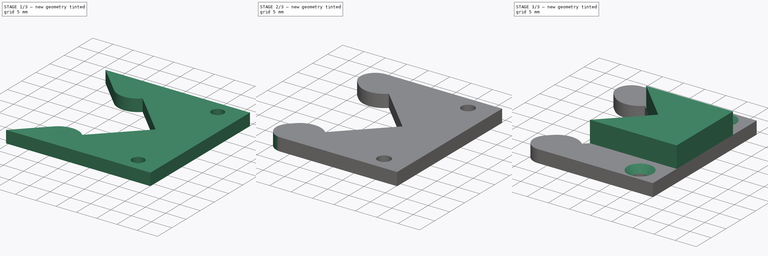
[diagram: build sequence overview — one tinted view per stage of 3, left to right]
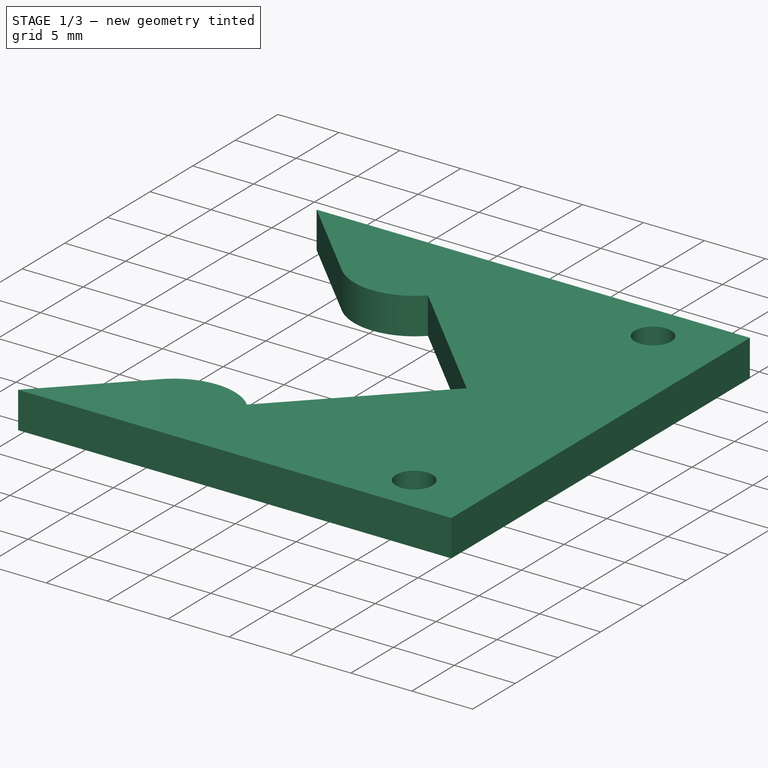
[diagram: stage 1 of 3 — iso view after this stage's code; geometry added in this stage tinted green]
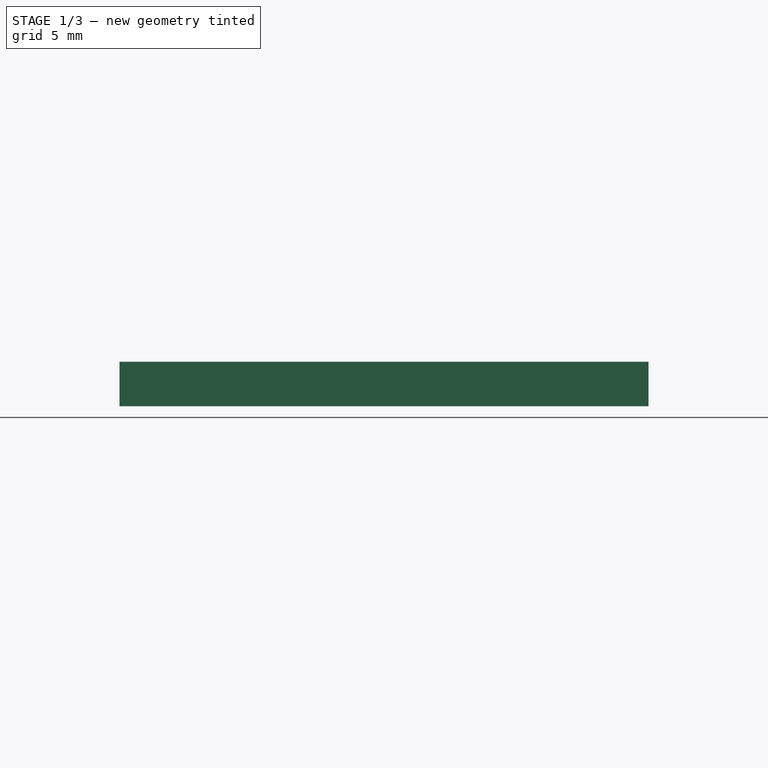
[diagram: stage 1 of 3 — front view after this stage's code; geometry added in this stage tinted green]
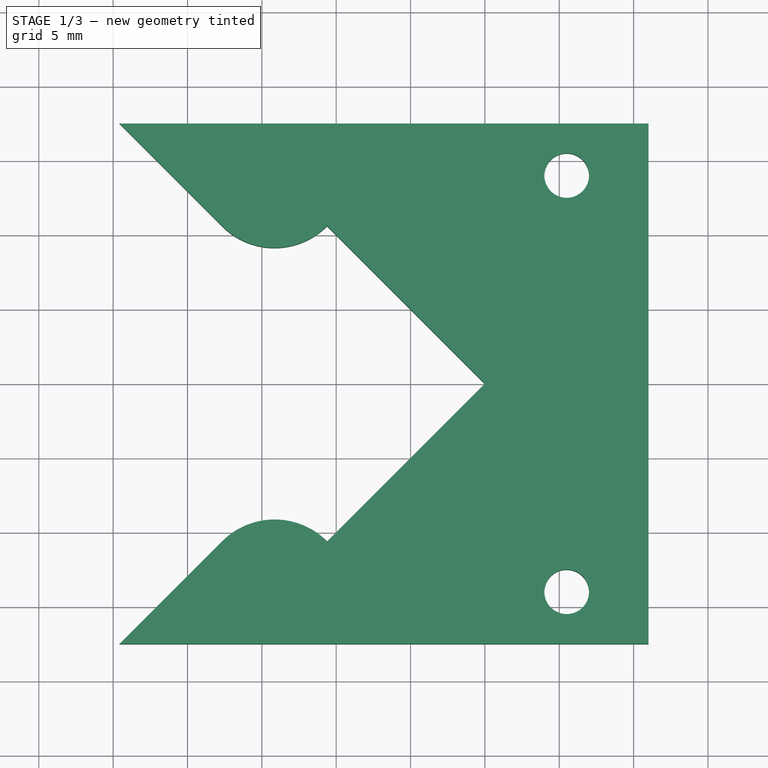
[diagram: stage 1 of 3 — top view after this stage's code; geometry added in this stage tinted green]
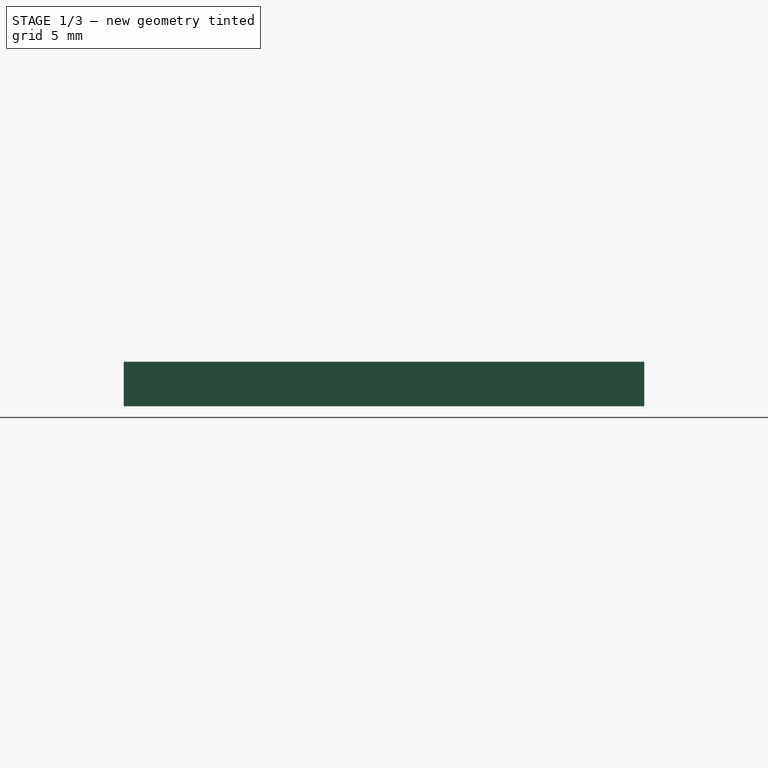
[diagram: stage 1 of 3 — right view after this stage's code; geometry added in this stage tinted green]
FCSTD DOCUMENT  (FreeCAD 0.18R16146 (Git))
Label: enstop_clamp_v4
License: All rights reserved
LicenseURL: http://en.wikipedia.org/wiki/All_rights_reserved
objects: Sketcher::SketchObject×2, PartDesign::Pad×2, PartDesign::Fillet×2, PartDesign::Chamfer×1, PartDesign::Body×1
note: 10 computed .brp shape members not serialized (recipe doc carries the construction recipe); baked Part::Feature solids carry a one-line shape summary decoded from their .brp

FEATURE [Sketcher::SketchObject] Sketch
  MapMode = 5
  Support = -> [XY_Plane]
  sketch-geometry (12):
    g0: LineSegment StartX=-10.6066 StartY=10.6066 StartZ=0 EndX=0 EndY=0 EndZ=0
    g1: LineSegment StartX=0 StartY=0 StartZ=0 EndX=-10.6066 EndY=-10.6066 EndZ=0
    g2: LineSegment StartX=-10.6066 StartY=-10.6066 StartZ=0 EndX=-14.1421 EndY=-7.07107 EndZ=0
    g3: LineSegment StartX=-14.1421 StartY=-7.07107 StartZ=0 EndX=-24.5711 EndY=-17.5 EndZ=0
    g4: LineSegment StartX=-24.5711 StartY=-17.5 StartZ=0 EndX=11 EndY=-17.5 EndZ=0
    g5: LineSegment StartX=11 StartY=-17.5 StartZ=0 EndX=11 EndY=17.5 EndZ=0
    g6: LineSegment StartX=11 StartY=17.5 StartZ=0 EndX=-24.5711 EndY=17.5 EndZ=0
    g7: LineSegment StartX=-24.5711 StartY=17.5 StartZ=0 EndX=-14.1421 EndY=7.07107 EndZ=0
    g8: LineSegment StartX=-14.1421 StartY=7.07107 StartZ=0 EndX=-10.6066 EndY=10.6066 EndZ=0
    g9: LineSegment [constr] StartX=5.5 StartY=14 StartZ=0 EndX=5.5 EndY=-14 EndZ=0
    g10: Circle CenterX=5.5 CenterY=14 CenterZ=0 NormalX=0 NormalY=0 NormalZ=1 AngleXU=0 Radius=1.5
    g11: Circle CenterX=5.5 CenterY=-14 CenterZ=0 NormalX=0 NormalY=0 NormalZ=1 AngleXU=0 Radius=1.5
  constraints (35):
    c: Coincident(g0,g8)
    c: Perpendicular(g1,g2)
    c: Perpendicular(g0,g8)
    c: Equal(g2,g8)
    c: Coincident(g7,g8)
    c: Perpendicular(g7,g8)
    c: Coincident(g6,g7)
    c: Horizontal(g6)
    c: Coincident(g0,g1)
    c: Coincident(g0,g-1)
    c: Coincident(g2,g1)
    c: Coincident(g2,g3)
    c: Coincident(g3,g4)
    c: Horizontal(g4)
    c: Perpendicular(g2,g3)
    c: Coincident(g4,g5)
    c: Coincident(g5,g6)
    c: Vertical(g5)
    c: Equal(g0,g1)
    c: Distance(g0) = 15
    c: Perpendicular(g1,g0)
    c: DistanceY(g5,g5) = 35
    c: Equal(g4,g6)
    c: Equal(g8,g2)
    c: Equal(g7,g3)
    c: Distance(g2) = 5
    c: DistanceX(g0,g5) = 11
    c: Coincident(g9,g11)
    c: Coincident(g9,g10)
    c: Radius(g10) = 1.5
    c: Equal(g10,g11)
    c: Vertical(g9)
    c: DistanceY(g9,g9) = 28
    c: DistanceY(g9,g0) = 14
    c: DistanceX(g0,g9) = 5.5
FEATURE [PartDesign::Pad] Pad
  Length = 3
  Length2 = 100
  Profile = -> Sketch
  Type = 0
FEATURE [PartDesign::Fillet] Fillet
  Base = -> Pad [Edge8,Edge23]
  BaseFeature = -> Pad
  Radius = 4.99
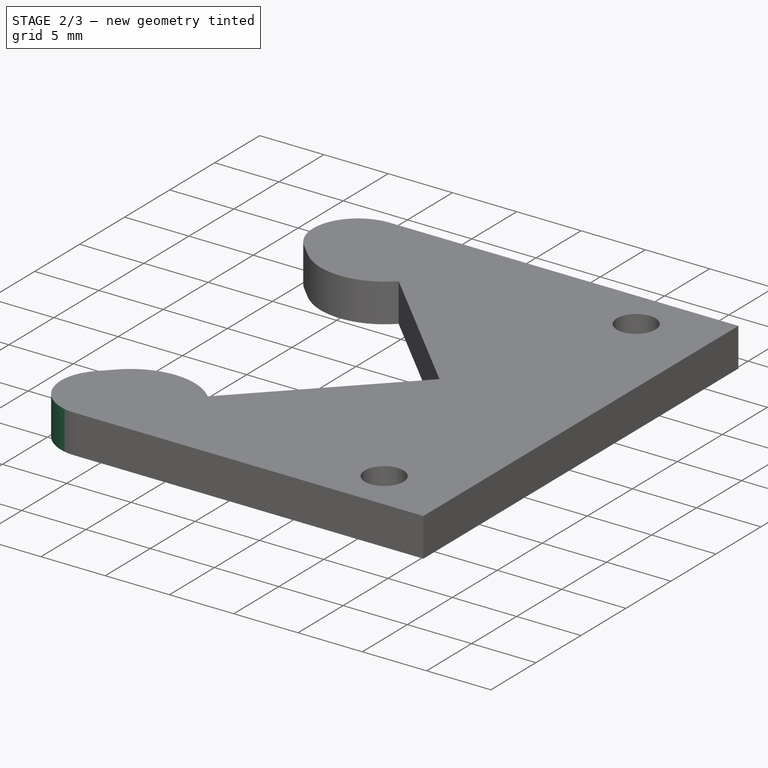
[diagram: stage 2 of 3 — iso view after this stage's code; geometry added in this stage tinted green]
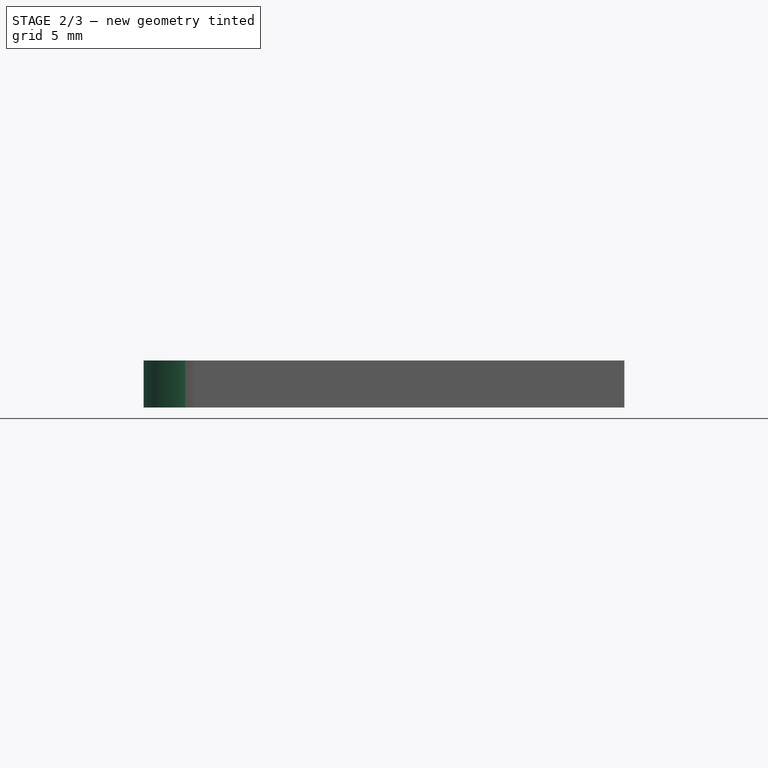
[diagram: stage 2 of 3 — front view after this stage's code; geometry added in this stage tinted green]
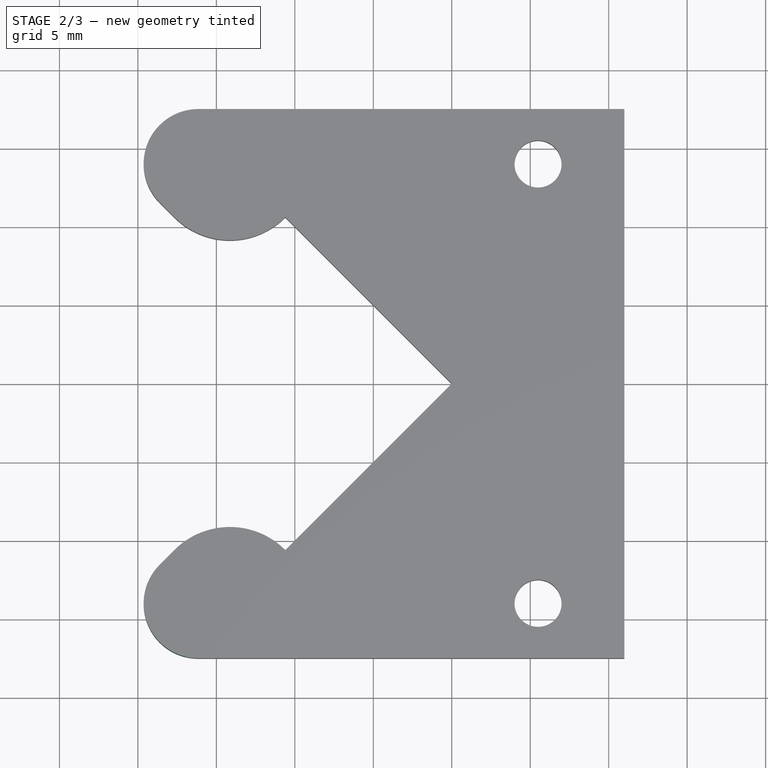
[diagram: stage 2 of 3 — top view after this stage's code; geometry added in this stage tinted green]
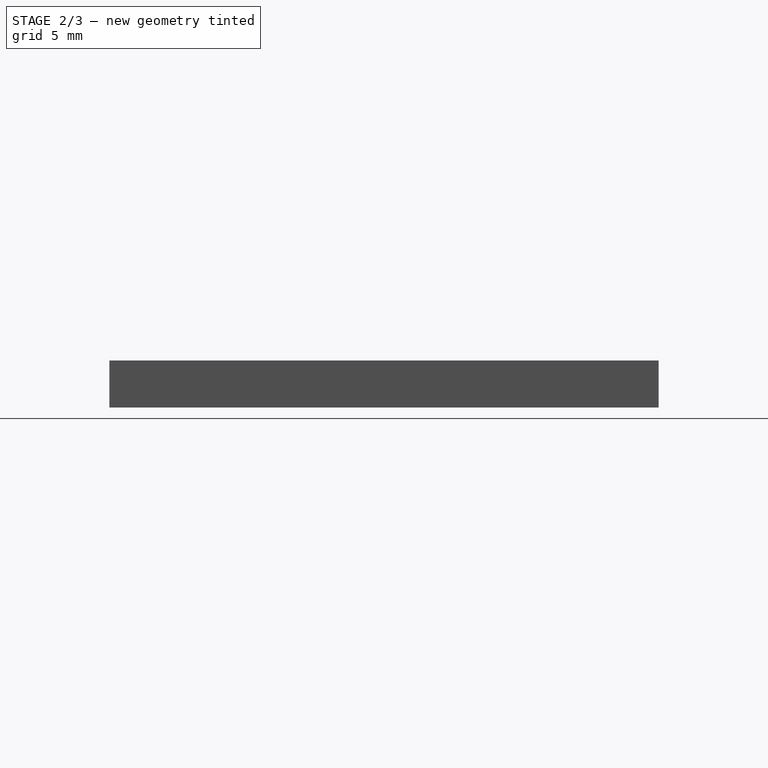
[diagram: stage 2 of 3 — right view after this stage's code; geometry added in this stage tinted green]
FEATURE [PartDesign::Fillet] Fillet001
  Base = -> Fillet [Edge31,Edge37]
  BaseFeature = -> Fillet
  Radius = 3.49
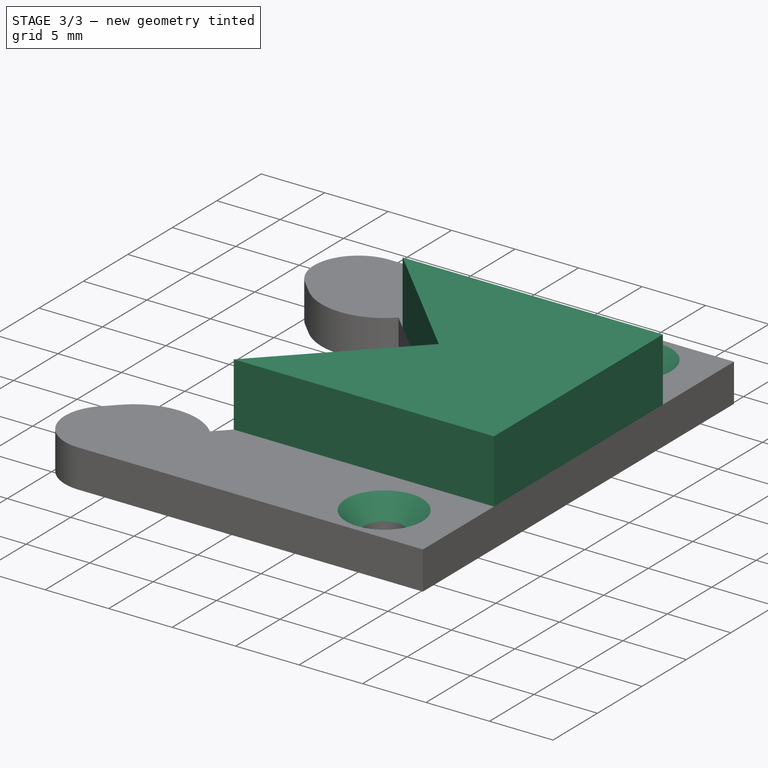
[diagram: stage 3 of 3 — iso view after this stage's code; geometry added in this stage tinted green]
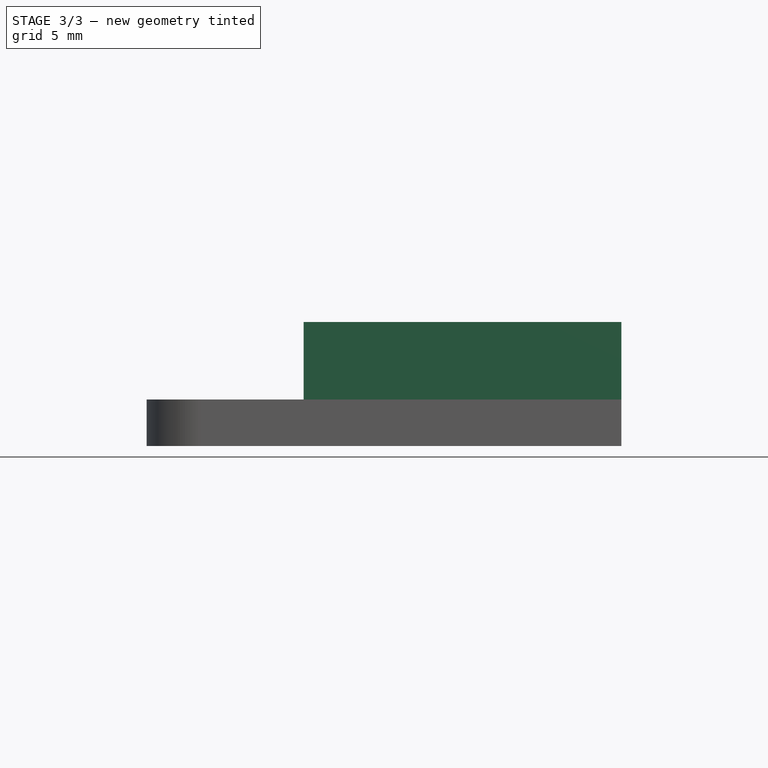
[diagram: stage 3 of 3 — front view after this stage's code; geometry added in this stage tinted green]
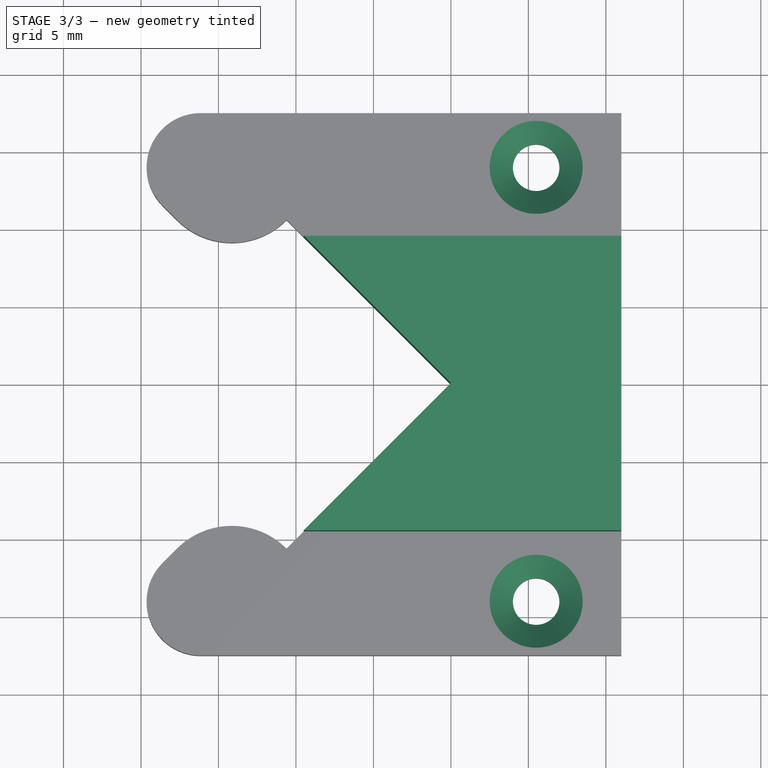
[diagram: stage 3 of 3 — top view after this stage's code; geometry added in this stage tinted green]
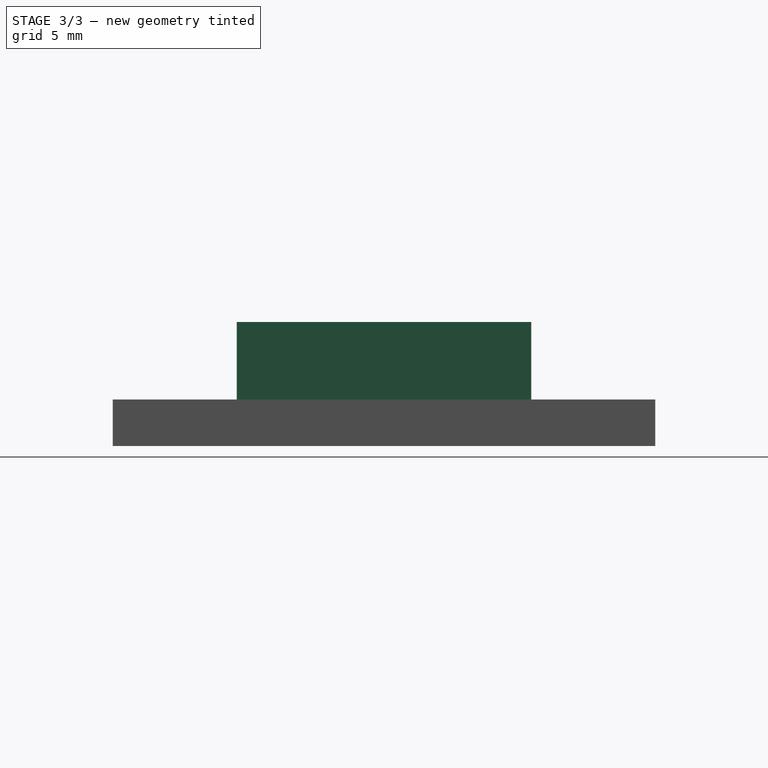
[diagram: stage 3 of 3 — right view after this stage's code; geometry added in this stage tinted green]
FEATURE [Sketcher::SketchObject] Sketch001
  ExternalGeometry = -> [Fillet001]
  MapMode = 5
  Placement = pos=(0,0,3) rot=(0,0,1;0rad)
  Support = -> [Fillet001]
  sketch-geometry (5):
    g0: LineSegment StartX=-9.5 StartY=9.5 StartZ=0 EndX=11 EndY=9.5 EndZ=0
    g1: LineSegment StartX=11 StartY=9.5 StartZ=0 EndX=11 EndY=-9.5 EndZ=0
    g2: LineSegment StartX=11 StartY=-9.5 StartZ=0 EndX=-9.5 EndY=-9.5 EndZ=0
    g3: LineSegment StartX=-9.5 StartY=-9.5 StartZ=0 EndX=0 EndY=0 EndZ=0
    g4: LineSegment StartX=0 StartY=0 StartZ=0 EndX=-9.5 EndY=9.5 EndZ=0
  constraints (13):
    c: Coincident(g0,g1)
    c: Coincident(g1,g2)
    c: Coincident(g3,g4)
    c: Coincident(g3,g-1)
    c: Horizontal(g2)
    c: Horizontal(g0)
    c: Coincident(g2,g3)
    c: PointOnObject(g2,g-4)
    c: Coincident(g0,g4)
    c: PointOnObject(g0,g-3)
    c: DistanceY(g1,g1) = 19
    c: Symmetric(g1,g0,g-1)
    c: PointOnObject(g1,g-5)
FEATURE [PartDesign::Pad] Pad001
  BaseFeature = -> Fillet001
  Length = 5
  Length2 = 100
  Profile = -> Sketch001
  Type = 0
FEATURE [PartDesign::Chamfer] Chamfer
  Base = -> Pad001 [Edge47,Edge49]
  BaseFeature = -> Pad001
  Size = 1.5
FEATURE [PartDesign::Body] Body
  Group = -> [Sketch,Pad,Fillet,Fillet001,Sketch001,Pad001,Chamfer]
  Origin = -> Origin
  Tip = -> Chamfer
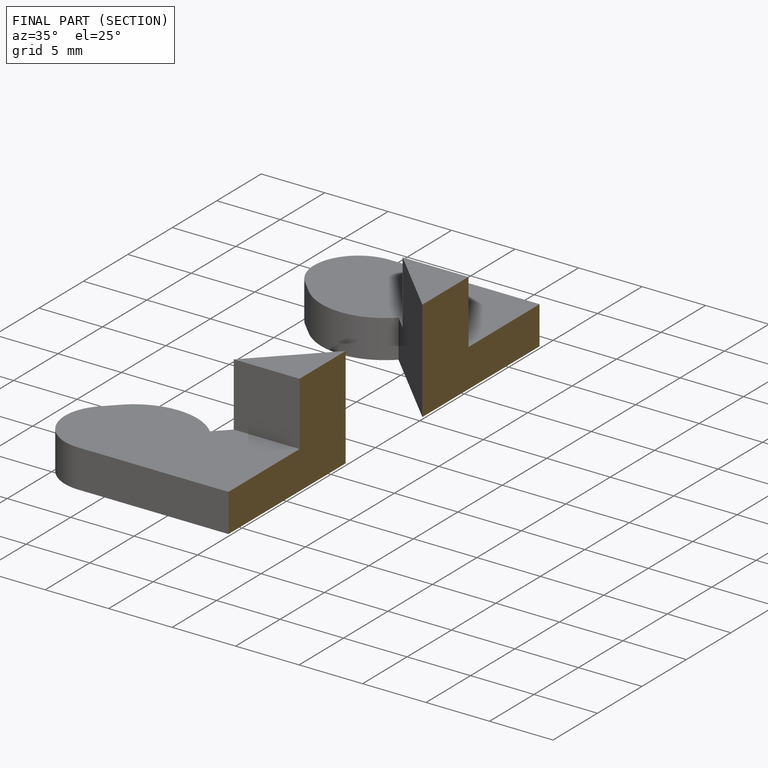
[diagram: finished part — half-section view (interior)]
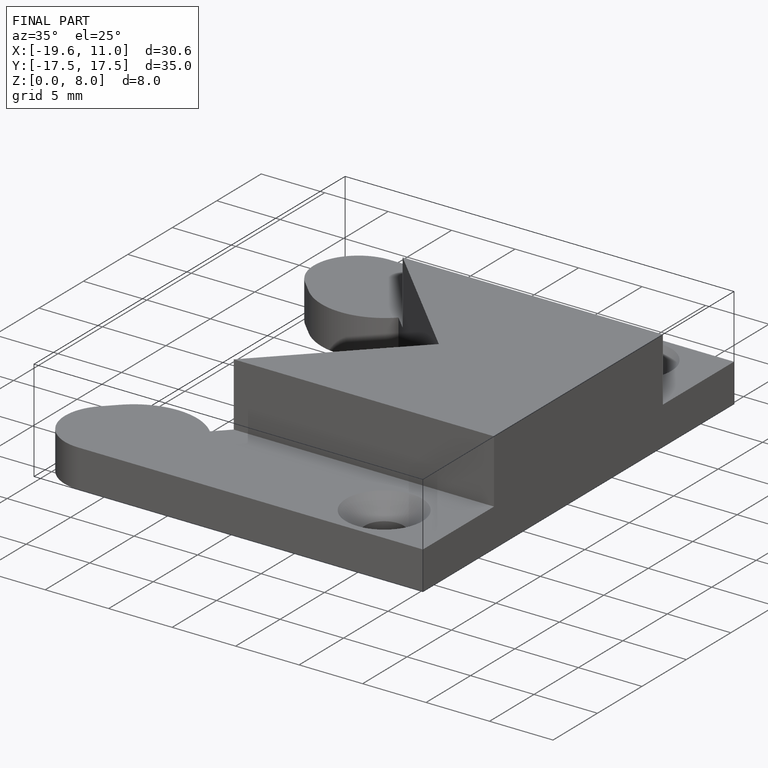
[diagram: finished part — iso view with bounding-box wireframe]
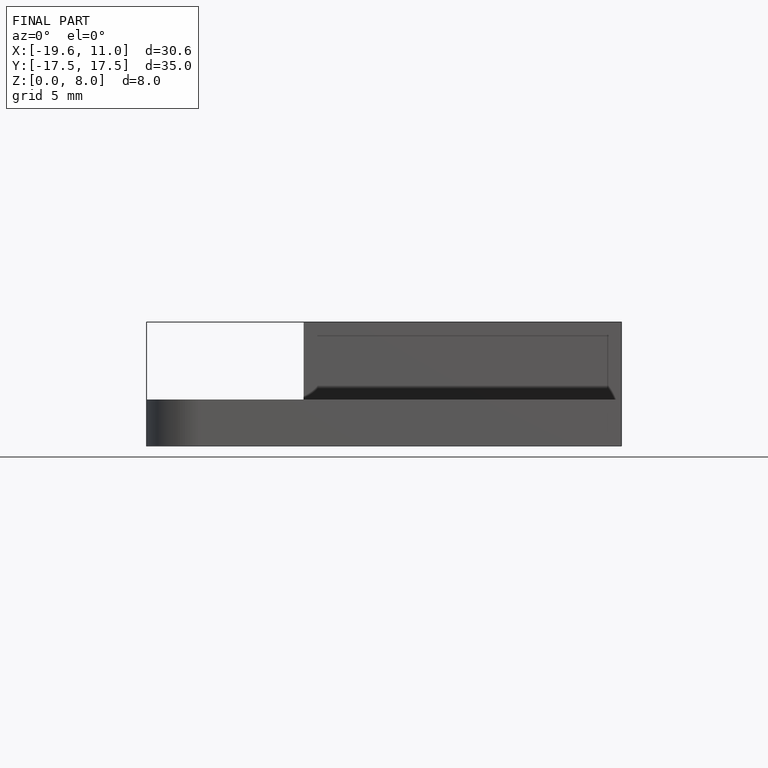
[diagram: finished part — front view with bounding-box wireframe]
